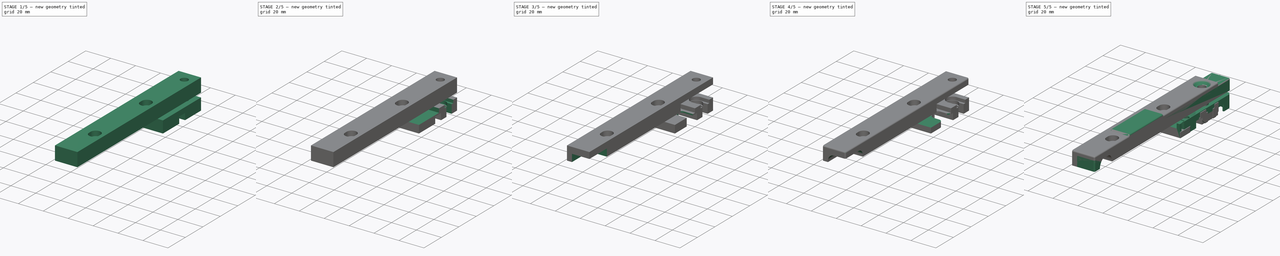
[diagram: build sequence overview — one tinted view per stage of 5, left to right]
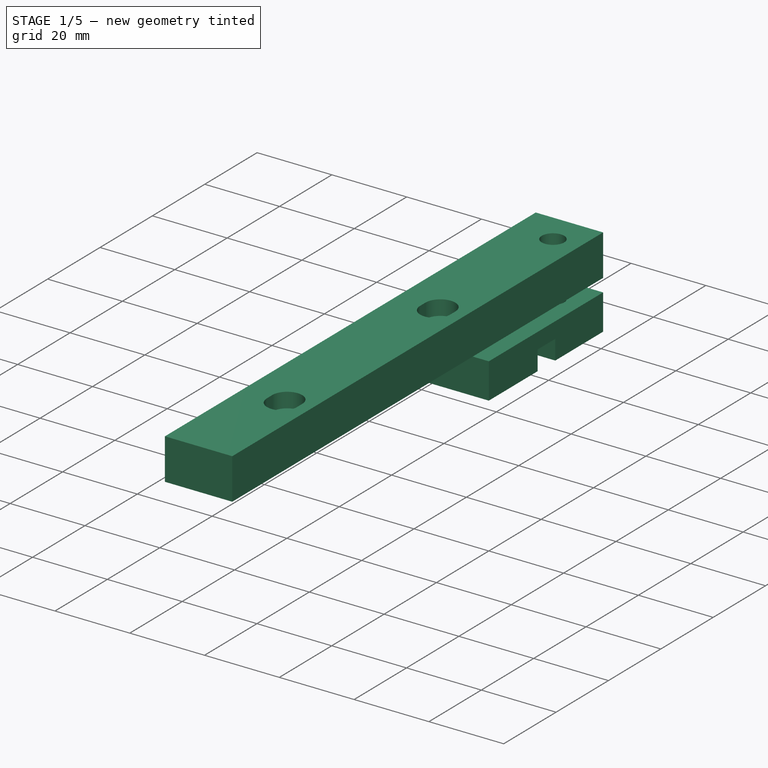
[diagram: stage 1 of 5 — iso view after this stage's code; geometry added in this stage tinted green]
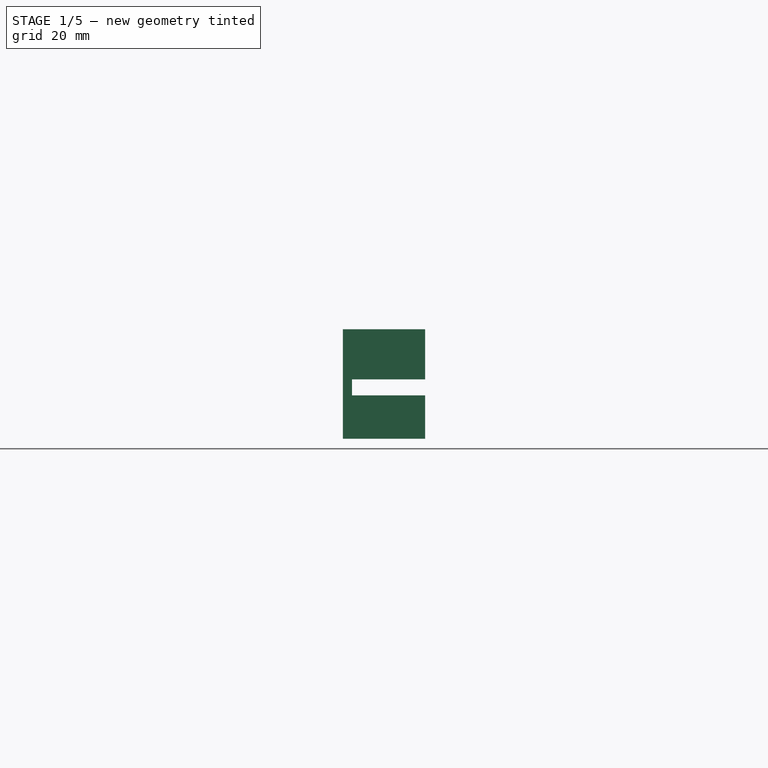
[diagram: stage 1 of 5 — front view after this stage's code; geometry added in this stage tinted green]
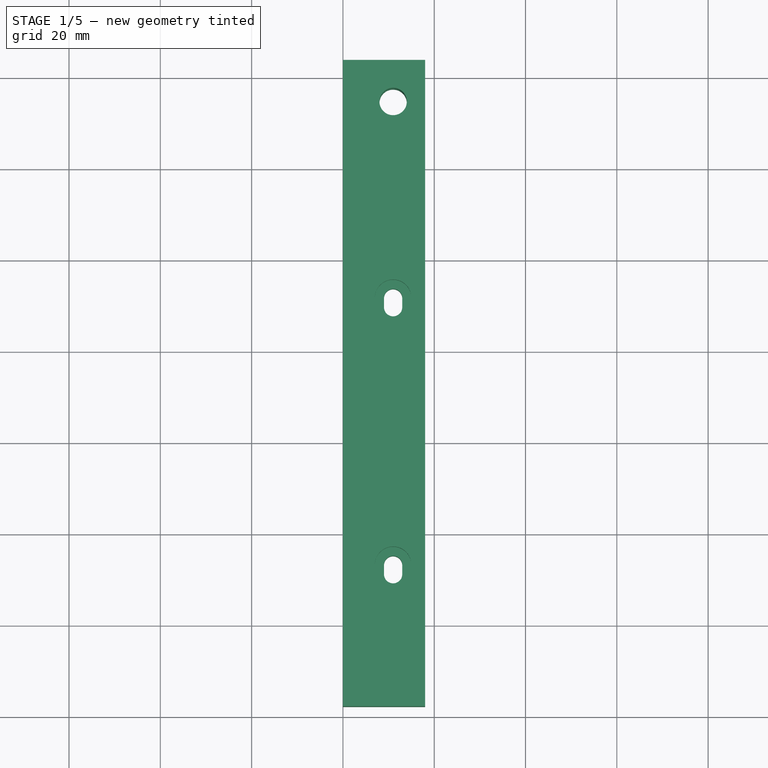
[diagram: stage 1 of 5 — top view after this stage's code; geometry added in this stage tinted green]
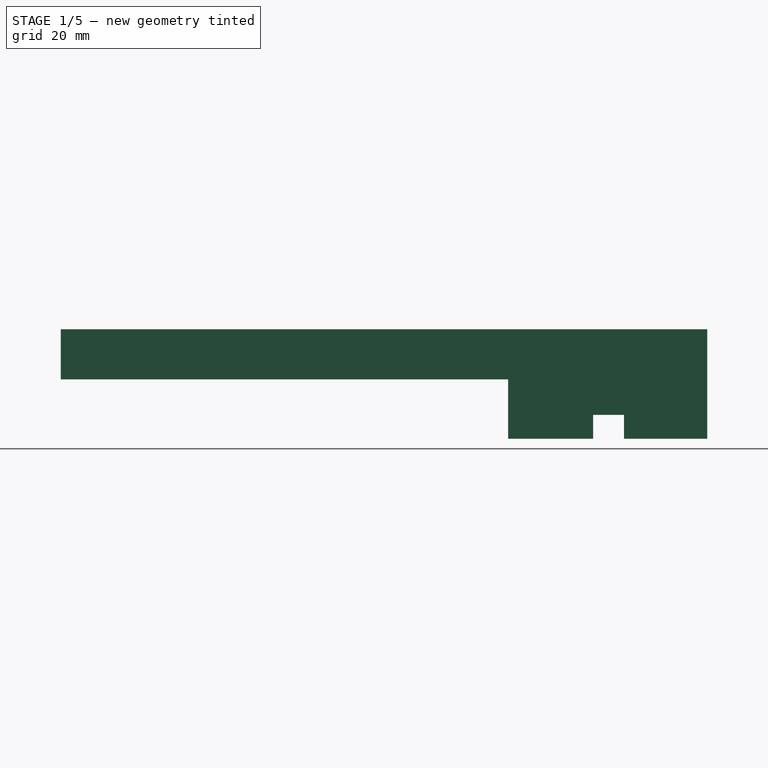
[diagram: stage 1 of 5 — right view after this stage's code; geometry added in this stage tinted green]
FCSTD DOCUMENT  (FreeCAD 0.18R4 (GitTag))
Label: y_cable_cover_v1.3
License: CreativeCommons Attribution-ShareAlike
LicenseURL: http://creativecommons.org/licenses/by-sa/4.0/
objects: Sketcher::SketchObject×13, PartDesign::Pocket×12, PartDesign::Fillet×3, Part::FeaturePython×2, App::FeaturePython×2, PartDesign::Chamfer×2, PartDesign::Pad×1, PartDesign::Body×1
note: 47 computed .brp shape members not serialized (recipe doc carries the construction recipe); baked Part::Feature solids carry a one-line shape summary decoded from their .brp

FEATURE [App::FeaturePython] circularEdgeConstraint01  label="circularEdgeConstraint01__Y_bed_chain_mounting_bracket_v1_01"  # a2plus constraint (typed FeaturePython)
  Object1 = y_cable_cover_01
  Object2 = Y_bed_chain_mounting_bracket_v1_01
  SubElement1 = Edge40
  SubElement2 = Edge15
  Type = circularEdge
  directionConstraint = 0
  lockRotation = false
  offset = 3
FEATURE [App::FeaturePython] circularEdgeConstraint01_mirror  label="circularEdgeConstraint01__y_cable_cover_01"  # a2plus constraint (typed FeaturePython)
  Object1 = y_cable_cover_01
  Object2 = Y_bed_chain_mounting_bracket_v1_01
  SubElement1 = Edge40
  SubElement2 = Edge15
  Type = circularEdge
  directionConstraint = 0
  lockRotation = false
  offset = 3
FEATURE [Sketcher::SketchObject] Sketch
  MapMode = 5
  Placement = pos=(0,0,0) rot=(0.57735,0.57735,0.57735;2.0944rad)
  Support = -> [YZ_Plane]
  sketch-geometry (10):
    g0: LineSegment StartX=-98 StartY=3 StartZ=0 EndX=-98 EndY=14 EndZ=0
    g1: LineSegment StartX=-98 StartY=14 StartZ=0 EndX=43.625 EndY=14 EndZ=0
    g2: LineSegment StartX=43.625 StartY=14 StartZ=0 EndX=43.625 EndY=-10 EndZ=0
    g3: LineSegment StartX=43.625 StartY=-10 StartZ=0 EndX=25.375 EndY=-10 EndZ=0
    g4: LineSegment StartX=25.375 StartY=-10 StartZ=0 EndX=25.375 EndY=-4.75 EndZ=0
    g5: LineSegment StartX=25.375 StartY=-4.75 StartZ=0 EndX=18.625 EndY=-4.75 EndZ=0
    g6: LineSegment StartX=18.625 StartY=-4.75 StartZ=0 EndX=18.625 EndY=-10 EndZ=0
    g7: LineSegment StartX=18.625 StartY=-10 StartZ=0 EndX=0 EndY=-10 EndZ=0
    g8: LineSegment StartX=0 StartY=-10 StartZ=0 EndX=0 EndY=3 EndZ=0
    g9: LineSegment StartX=0 StartY=3 StartZ=0 EndX=-98 EndY=3 EndZ=0
  constraints (30):
    c: Coincident(g2,g3)
    c: Coincident(g3,g4)
    c: Coincident(g4,g5)
    c: Coincident(g5,g6)
    c: Coincident(g6,g7)
    c: Coincident(g7,g8)
    c: Coincident(g8,g9)
    c: Coincident(g0,g9)
    c: Horizontal(g9)
    c: Horizontal(g1)
    c: Horizontal(g3)
    c: Horizontal(g7)
    c: Vertical(g8)
    c: Vertical(g0)
    c: Vertical(g2)
    c: Vertical(g6)
    c: Vertical(g4)
    c: Horizontal(g5)
    c: PointOnObject(g8,g-2)
    c: DistanceY(g8) = 3
    c: DistanceY(g8,g8) = 13
    c: DistanceX(g7,g7) = 18.625
    c: DistanceY(g6,g6) = 5.25
    c: Equal(g6,g4)
    c: DistanceX(g5,g5) = 6.75
    c: DistanceX(g3,g3) = 18.25
    c: DistanceX(g9,g9) = 98
    c: Coincident(g1,g2)
    c: DistanceY(g2,g2) = 24
    c: Coincident(g0,g1)
FEATURE [PartDesign::Pad] Pad
  Length = 18
  Length2 = 100
  Placement = pos=(0,0,0) rot=(0.57735,0.57735,0.57735;2.0944rad)
  Profile = -> Sketch
  Type = 0
FEATURE [Sketcher::SketchObject] Sketch001
  MapMode = 5
  Placement = pos=(-1.5807e-12,1.5792e-12,14) rot=(0,0,-1;1.5708rad)
  Support = -> [Pad]
  sketch-geometry (10):
    g0: Circle CenterX=-34.5 CenterY=11 CenterZ=0 NormalX=0 NormalY=0 NormalZ=1 AngleXU=0 Radius=3
    g1: ArcOfCircle CenterX=8.5 CenterY=11 CenterZ=0 NormalX=0 NormalY=0 NormalZ=1 AngleXU=0 Radius=2 StartAngle=1.5708 EndAngle=4.71239
    g2: ArcOfCircle CenterX=10.5 CenterY=11 CenterZ=0 NormalX=0 NormalY=0 NormalZ=1 AngleXU=0 Radius=2 StartAngle=4.71239 EndAngle=7.85398
    g3: LineSegment StartX=8.5 StartY=9 StartZ=0 EndX=10.5 EndY=9 EndZ=0
    g4: LineSegment StartX=8.5 StartY=13 StartZ=0 EndX=10.5 EndY=13 EndZ=0
    g5: ArcOfCircle CenterX=67 CenterY=11 CenterZ=0 NormalX=0 NormalY=0 NormalZ=1 AngleXU=0 Radius=2 StartAngle=1.5708 EndAngle=4.71239
    g6: ArcOfCircle CenterX=69 CenterY=11 CenterZ=0 NormalX=0 NormalY=0 NormalZ=1 AngleXU=0 Radius=2 StartAngle=4.71239 EndAngle=7.85398
    g7: LineSegment StartX=67 StartY=9 StartZ=0 EndX=69 EndY=9 EndZ=0
    g8: LineSegment StartX=67 StartY=13 StartZ=0 EndX=69 EndY=13 EndZ=0
    g9: LineSegment [constr] StartX=-34.5 StartY=11 StartZ=0 EndX=69 EndY=11 EndZ=0
  constraints (25):
    c: DistanceX(g0) = -34.5
    c: DistanceY(g0) = 11
    c: Radius(g0) = 3
    c: Tangent(g1,g4) = 1.5708
    c: Tangent(g1,g3) = -1.5708
    c: Tangent(g3,g2) = -1.5708
    c: Tangent(g4,g2) = 1.5708
    c: Horizontal(g3)
    c: Equal(g1,g2)
    c: Tangent(g5,g8) = 1.5708
    c: Tangent(g5,g7) = -1.5708
    c: Tangent(g7,g6) = -1.5708
    c: Tangent(g8,g6) = 1.5708
    c: Horizontal(g7)
    c: Equal(g5,g6)
    c: Coincident(g6,g9)
    c: Coincident(g0,g9)
    c: Horizontal(g9)
    c: PointOnObject(g1,g9)
    c: Radius(g6) = 2
    c: DistanceX(g6) = 69
    c: DistanceX(g5,g6) = 2
    c: DistanceX(g1,g2) = 2
    c: DistanceX(g2,g5) = 56.5
    c: Equal(g2,g5)
FEATURE [Sketcher::SketchObject] Sketch004
  MapMode = 5
  Placement = pos=(0,-2e-15,0) rot=(0.57735,0.57735,-0.57735;2.0944rad)
  sketch-geometry (4):
    g0: LineSegment StartX=0 StartY=2 StartZ=0 EndX=3.75 EndY=7 EndZ=0
    g1: LineSegment StartX=3.75 StartY=7 StartZ=0 EndX=3.75 EndY=18 EndZ=0
    g2: LineSegment StartX=3.75 StartY=18 StartZ=0 EndX=0 EndY=18 EndZ=0
    g3: LineSegment StartX=0 StartY=18 StartZ=0 EndX=0 EndY=2 EndZ=0
  constraints (12):
    c: Coincident(g0,g1)
    c: Coincident(g1,g2)
    c: Coincident(g2,g3)
    c: Coincident(g0,g3)
    c: Vertical(g3)
    c: Horizontal(g2)
    c: Vertical(g1)
    c: DistanceY(g3,g3) = 16
    c: DistanceX(g2,g2) = 3.75
    c: PointOnObject(g0,g-2)
    c: DistanceY(g0) = 2
    c: DistanceY(g1,g1) = 11
FEATURE [Sketcher::SketchObject] Sketch006
  MapMode = 5
  Placement = pos=(0,0,-2.9e-14) rot=(0,0,-1;1.5708rad)
  sketch-geometry (4):
    g0: ArcOfCircle CenterX=-34.5 CenterY=11 CenterZ=0 NormalX=0 NormalY=0 NormalZ=1 AngleXU=0 Radius=4.875 StartAngle=3.14159 EndAngle=6.28319
    g1: LineSegment StartX=-39.375 StartY=11 StartZ=0 EndX=-39.375 EndY=18 EndZ=0
    g2: LineSegment StartX=-39.375 StartY=18 StartZ=0 EndX=-29.625 EndY=18 EndZ=0
    g3: LineSegment StartX=-29.625 StartY=18 StartZ=0 EndX=-29.625 EndY=11 EndZ=0
  constraints (11):
    c: DistanceX(g0) = -34.5
    c: DistanceY(g0) = 11
    c: Coincident(g1,g2)
    c: Coincident(g2,g3)
    c: Tangent(g0,g1) = 1.5708
    c: Tangent(g0,g3) = 1.5708
    c: Horizontal(g2)
    c: Vertical(g3)
    c: Vertical(g1)
    c: Radius(g0) = 4.875
    c: DistanceY(g3,g3) = 7
FEATURE [Sketcher::SketchObject] Sketch007
  MapMode = 5
  Placement = pos=(3e-15,-3e-15,-3) rot=(0,0,-1;1.5708rad)
  sketch-geometry (5):
    g0: LineSegment StartX=-37.5 StartY=18 StartZ=0 EndX=-31.5 EndY=18 EndZ=0
    g1: LineSegment StartX=-31.5 StartY=18 StartZ=0 EndX=-31.5 EndY=11 EndZ=0
    g2: LineSegment [constr] StartX=-31.5 StartY=11 StartZ=0 EndX=-37.5 EndY=11 EndZ=0
    g3: LineSegment StartX=-37.5 StartY=11 StartZ=0 EndX=-37.5 EndY=18 EndZ=0
    g4: ArcOfCircle CenterX=-34.5 CenterY=11 CenterZ=0 NormalX=0 NormalY=0 NormalZ=1 AngleXU=0 Radius=3 StartAngle=3.14159 EndAngle=6.28319
  constraints (15):
    c: Coincident(g0,g1)
    c: Coincident(g1,g2)
    c: Coincident(g2,g3)
    c: Coincident(g3,g0)
    c: Horizontal(g0)
    c: Horizontal(g2)
    c: Vertical(g1)
    c: Vertical(g3)
    c: Coincident(g1,g4)
    c: Coincident(g2,g4)
    c: PointOnObject(g4,g2)
    c: DistanceX(g4) = -34.5
    c: DistanceY(g4) = 11
    c: Radius(g4) = 3
    c: DistanceY(g1,g1) = 7
FEATURE [Sketcher::SketchObject] Sketch008
  MapMode = 5
  Placement = pos=(4e-15,-5e-15,-3) rot=(0,0,-1;1.5708rad)
  sketch-geometry (1):
    g0: Circle CenterX=-34.5 CenterY=11 CenterZ=0 NormalX=0 NormalY=0 NormalZ=1 AngleXU=0 Radius=4.5
  constraints (3):
    c: DistanceX(g0) = -34.5
    c: DistanceY(g0) = 11
    c: Radius(g0) = 4.5
FEATURE [Sketcher::SketchObject] Sketch009
  MapMode = 5
  Placement = pos=(4e-15,-7e-15,-3.75) rot=(0,0,-1;1.5708rad)
  sketch-geometry (5):
    g0: ArcOfCircle CenterX=-17 CenterY=11 CenterZ=0 NormalX=0 NormalY=0 NormalZ=1 AngleXU=0 Radius=3.5 StartAngle=3.14159 EndAngle=6.28319
    g1: LineSegment StartX=-20.5 StartY=18 StartZ=0 EndX=-13.5 EndY=18 EndZ=0
    g2: LineSegment StartX=-13.5 StartY=18 StartZ=0 EndX=-13.5 EndY=11 EndZ=0
    g3: LineSegment [constr] StartX=-13.5 StartY=11 StartZ=0 EndX=-20.5 EndY=11 EndZ=0
    g4: LineSegment StartX=-20.5 StartY=11 StartZ=0 EndX=-20.5 EndY=18 EndZ=0
  constraints (18):
    c: DistanceX(g0) = -17
    c: DistanceY(g0) = 11
    c: Radius(g0) = 3.5
    c: Coincident(g1,g2)
    c: Coincident(g3,g4)
    c: Coincident(g4,g1)
    c: Horizontal(g1)
    c: Horizontal(g3)
    c: Vertical(g2)
    c: Vertical(g4)
    c: PointOnObject(g3,g0)
    c: PointOnObject(g0,g3)
    c: DistanceX(g1,g1) = 7
    c: PointOnObject(g0,g3)
    c: Coincident(g0,g3)
    c: Coincident(g0,g2)
    c: Coincident(g0,g3)
    c: DistanceY(g4,g4) = 7
FEATURE [Sketcher::SketchObject] Sketch010
  MapMode = 5
  Placement = pos=(-5e-15,5e-15,3) rot=(0.707107,0.707107,0;3.14159rad)
  sketch-geometry (4):
    g0: ArcOfCircle CenterX=53 CenterY=11 CenterZ=0 NormalX=0 NormalY=0 NormalZ=1 AngleXU=0 Radius=2 StartAngle=4.71239 EndAngle=7.85398
    g1: ArcOfCircle CenterX=8 CenterY=11 CenterZ=0 NormalX=0 NormalY=0 NormalZ=1 AngleXU=0 Radius=2 StartAngle=1.5708 EndAngle=4.71239
    g2: LineSegment StartX=53 StartY=13 StartZ=0 EndX=8 EndY=13 EndZ=0
    g3: LineSegment StartX=53 StartY=9 StartZ=0 EndX=8 EndY=9 EndZ=0
  constraints (10):
    c: Tangent(g0,g3) = 1.5708
    c: Tangent(g0,g2) = -1.5708
    c: Tangent(g2,g1) = -1.5708
    c: Tangent(g3,g1) = 1.5708
    c: Horizontal(g2)
    c: Equal(g0,g1)
    c: DistanceX(g2,g2) = 45
    c: Radius(g0) = 2
    c: DistanceX(g1) = 8
    c: DistanceY(g1) = 11
FEATURE [Sketcher::SketchObject] Sketch011
  MapMode = 5
  Placement = pos=(18,-4.4e-14,2.4e-14) rot=(0.57735,0.57735,0.57735;2.0944rad)
  sketch-geometry (4):
    g0: LineSegment StartX=-98 StartY=3 StartZ=0 EndX=-78 EndY=3 EndZ=0
    g1: LineSegment StartX=-78 StartY=3 StartZ=0 EndX=-78 EndY=9 EndZ=0
    g2: LineSegment StartX=-78 StartY=9 StartZ=0 EndX=-98 EndY=9 EndZ=0
    g3: LineSegment StartX=-98 StartY=9 StartZ=0 EndX=-98 EndY=3 EndZ=0
  constraints (12):
    c: Coincident(g0,g1)
    c: Coincident(g1,g2)
    c: Coincident(g2,g3)
    c: Coincident(g3,g0)
    c: Horizontal(g0)
    c: Horizontal(g2)
    c: Vertical(g1)
    c: Vertical(g3)
    c: DistanceX(g0) = -98
    c: DistanceY(g0) = 3
    c: DistanceX(g0,g0) = 20
    c: DistanceY(g1,g1) = 6
FEATURE [Sketcher::SketchObject] Sketch013
  MapMode = 5
  Placement = pos=(18,-4e-15,1.6e-14) rot=(0.57735,0.57735,0.57735;2.0944rad)
  sketch-geometry (4):
    g0: LineSegment StartX=6.5 StartY=9 StartZ=0 EndX=54.5 EndY=9 EndZ=0
    g1: LineSegment StartX=54.5 StartY=9 StartZ=0 EndX=54.5 EndY=3 EndZ=0
    g2: LineSegment StartX=54.5 StartY=3 StartZ=0 EndX=6.5 EndY=3 EndZ=0
    g3: LineSegment StartX=6.5 StartY=3 StartZ=0 EndX=6.5 EndY=9 EndZ=0
  constraints (12):
    c: Coincident(g0,g1)
    c: Coincident(g1,g2)
    c: Coincident(g2,g3)
    c: Coincident(g3,g0)
    c: Horizontal(g0)
    c: Horizontal(g2)
    c: Vertical(g1)
    c: Vertical(g3)
    c: DistanceX(g2) = 6.5
    c: DistanceY(g2) = 3
    c: DistanceX(g0,g0) = 48
    c: DistanceY(g1,g1) = 6
FEATURE [Sketcher::SketchObject] Sketch015
  MapMode = 5
  Placement = pos=(0,-5e-15,0) rot=(0.57735,0.57735,-0.57735;2.0944rad)
  sketch-geometry (5):
    g0: LineSegment StartX=0 StartY=2 StartZ=0 EndX=5.75 EndY=7 EndZ=0
    g1: LineSegment StartX=5.75 StartY=7 StartZ=0 EndX=5.75 EndY=18 EndZ=0
    g2: LineSegment StartX=5.75 StartY=18 StartZ=0 EndX=3.75 EndY=18 EndZ=0
    g3: LineSegment StartX=3.75 StartY=18 StartZ=0 EndX=3.75 EndY=7 EndZ=0
    g4: LineSegment StartX=3.75 StartY=7 StartZ=0 EndX=0 EndY=2 EndZ=0
  constraints (9):
    c: Coincident(g0,g1)
    c: Coincident(g1,g2)
    c: Coincident(g2,g3)
    c: Coincident(g3,g4)
    c: Coincident(g0,g4)
    c: Horizontal(g2)
    c: DistanceY(g0,g3) = 0
    c: Vertical(g1)
    c: DistanceX(g2,g2) = 2
FEATURE [PartDesign::Pocket] Pocket
  BaseFeature = -> Pad
  Length = 9
  Length2 = 100
  Placement = pos=(0,0,0) rot=(0.57735,0.57735,0.57735;2.0944rad)
  Profile = -> Sketch001
  Refine = true
  Type = 1
FEATURE [Sketcher::SketchObject] Sketch002
  MapMode = 5
  Placement = pos=(-1.5807e-12,1.5792e-12,14) rot=(0,0,-1;1.5708rad)
  Support = -> [Pocket]
  sketch-geometry (9):
    g0: ArcOfCircle CenterX=8.5 CenterY=11 CenterZ=0 NormalX=0 NormalY=0 NormalZ=1 AngleXU=0 Radius=4 StartAngle=1.5708 EndAngle=4.71239
    g1: ArcOfCircle CenterX=10.5 CenterY=11 CenterZ=0 NormalX=0 NormalY=0 NormalZ=1 AngleXU=0 Radius=4 StartAngle=4.71239 EndAngle=7.85398
    g2: LineSegment StartX=8.5 StartY=7 StartZ=0 EndX=10.5 EndY=7 EndZ=0
    g3: LineSegment StartX=8.5 StartY=15 StartZ=0 EndX=10.5 EndY=15 EndZ=0
    g4: ArcOfCircle CenterX=67 CenterY=11 CenterZ=0 NormalX=0 NormalY=0 NormalZ=1 AngleXU=0 Radius=4 StartAngle=1.5708 EndAngle=4.71239
    g5: ArcOfCircle CenterX=69 CenterY=11 CenterZ=0 NormalX=0 NormalY=0 NormalZ=1 AngleXU=0 Radius=4 StartAngle=4.71239 EndAngle=7.85398
    g6: LineSegment StartX=67 StartY=7 StartZ=0 EndX=69 EndY=7 EndZ=0
    g7: LineSegment StartX=67 StartY=15 StartZ=0 EndX=69 EndY=15 EndZ=0
    g8: LineSegment [constr] StartX=8.5 StartY=11 StartZ=0 EndX=69 EndY=11 EndZ=0
  constraints (22):
    c: Tangent(g0,g3) = 1.5708
    c: Tangent(g0,g2) = -1.5708
    c: Tangent(g2,g1) = -1.5708
    c: Tangent(g3,g1) = 1.5708
    c: Horizontal(g2)
    c: Equal(g0,g1)
    c: Tangent(g4,g7) = 1.5708
    c: Tangent(g4,g6) = -1.5708
    c: Tangent(g6,g5) = -1.5708
    c: Tangent(g7,g5) = 1.5708
    c: Horizontal(g6)
    c: Equal(g4,g5)
    c: Coincident(g5,g8)
    c: Coincident(g0,g8)
    c: Horizontal(g8)
    c: DistanceX(g0) = 8.5
    c: DistanceY(g0) = 11
    c: Radius(g0) = 4
    c: Equal(g3,g7)
    c: DistanceX(g7,g7) = 2
    c: DistanceX(g8,g8) = 60.5
    c: Equal(g1,g4)
FEATURE [PartDesign::Pocket] Pocket001
  BaseFeature = -> Pocket
  Length = 4
  Length2 = 100
  Placement = pos=(0,0,0) rot=(0.57735,0.57735,0.57735;2.0944rad)
  Profile = -> Sketch002
  Refine = true
  Type = 0
FEATURE [Sketcher::SketchObject] Sketch003
  MapMode = 5
  Placement = pos=(4.916e-12,43.625,-4.9257e-12) rot=(0.57735,0.57735,0.57735;4.18879rad)
  Support = -> [Pocket001]
  sketch-geometry (4):
    g0: LineSegment StartX=-0.5 StartY=18 StartZ=0 EndX=3 EndY=18 EndZ=0
    g1: LineSegment StartX=3 StartY=18 StartZ=0 EndX=3 EndY=2 EndZ=0
    g2: LineSegment StartX=3 StartY=2 StartZ=0 EndX=-0.5 EndY=2 EndZ=0
    g3: LineSegment StartX=-0.5 StartY=2 StartZ=0 EndX=-0.5 EndY=18 EndZ=0
  constraints (12):
    c: Coincident(g0,g1)
    c: Coincident(g1,g2)
    c: Coincident(g2,g3)
    c: Coincident(g3,g0)
    c: Horizontal(g0)
    c: Horizontal(g2)
    c: Vertical(g1)
    c: Vertical(g3)
    c: DistanceY(g0) = 18
    c: DistanceY(g3,g3) = 16
    c: DistanceX(g2,g2) = 3.5
    c: DistanceX(g1) = 3
FEATURE [PartDesign::Pocket] Pocket002
  BaseFeature = -> Pocket001
  Length = 8
  Length2 = 100
  Placement = pos=(0,0,0) rot=(0.57735,0.57735,0.57735;2.0944rad)
  Profile = -> Sketch003
  Refine = true
  Type = 1
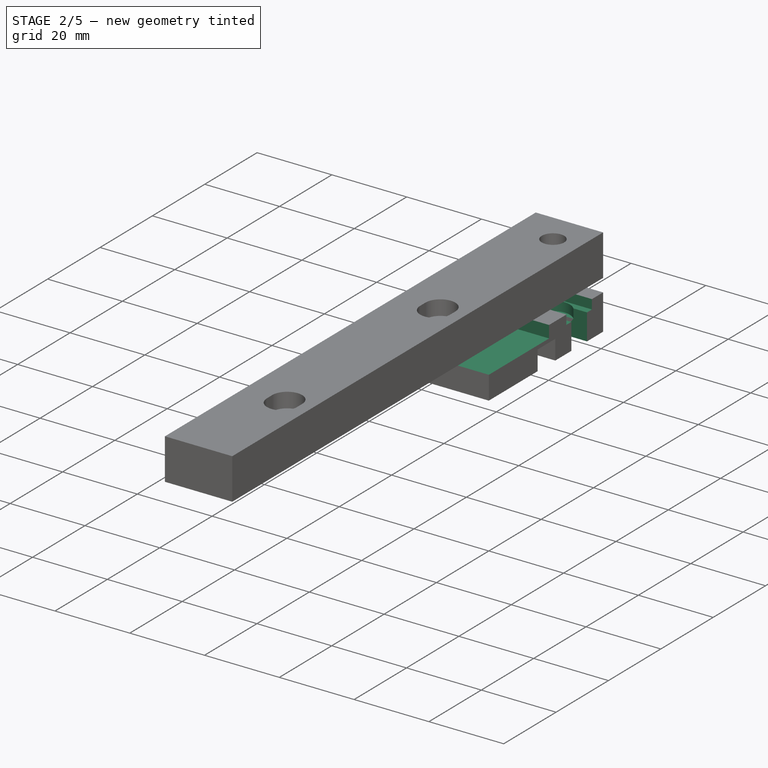
[diagram: stage 2 of 5 — iso view after this stage's code; geometry added in this stage tinted green]
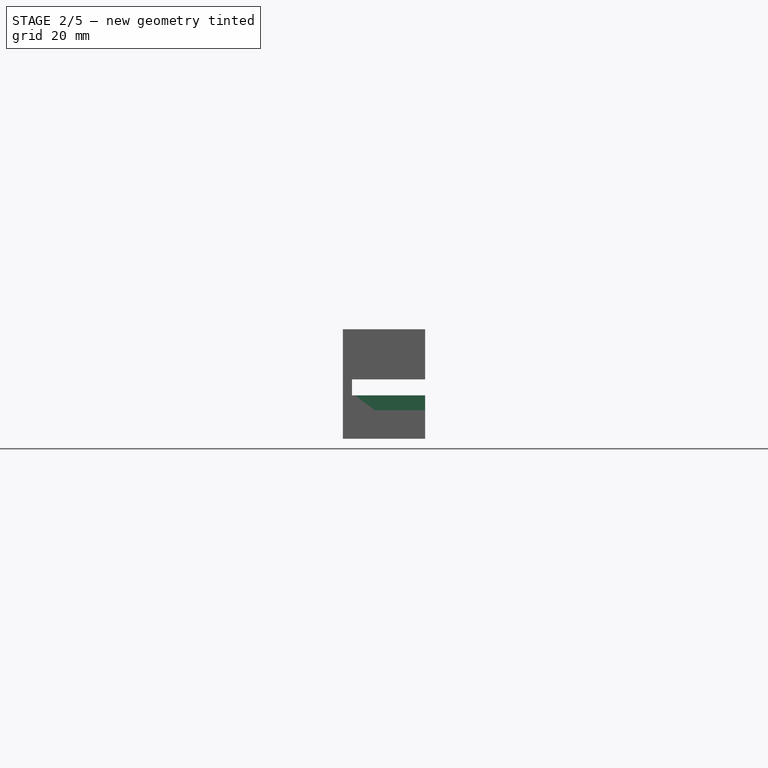
[diagram: stage 2 of 5 — front view after this stage's code; geometry added in this stage tinted green]
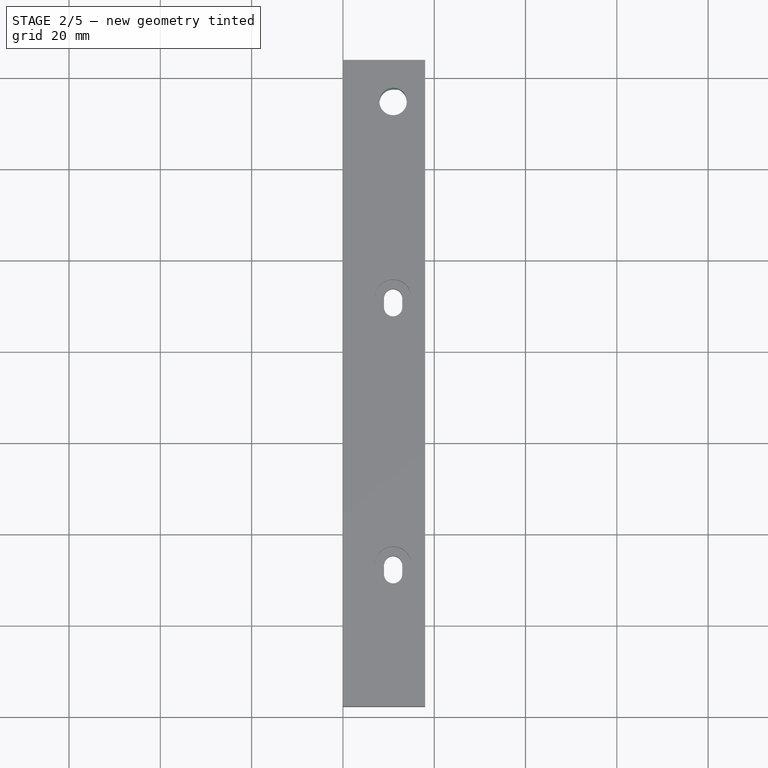
[diagram: stage 2 of 5 — top view after this stage's code; geometry added in this stage tinted green]
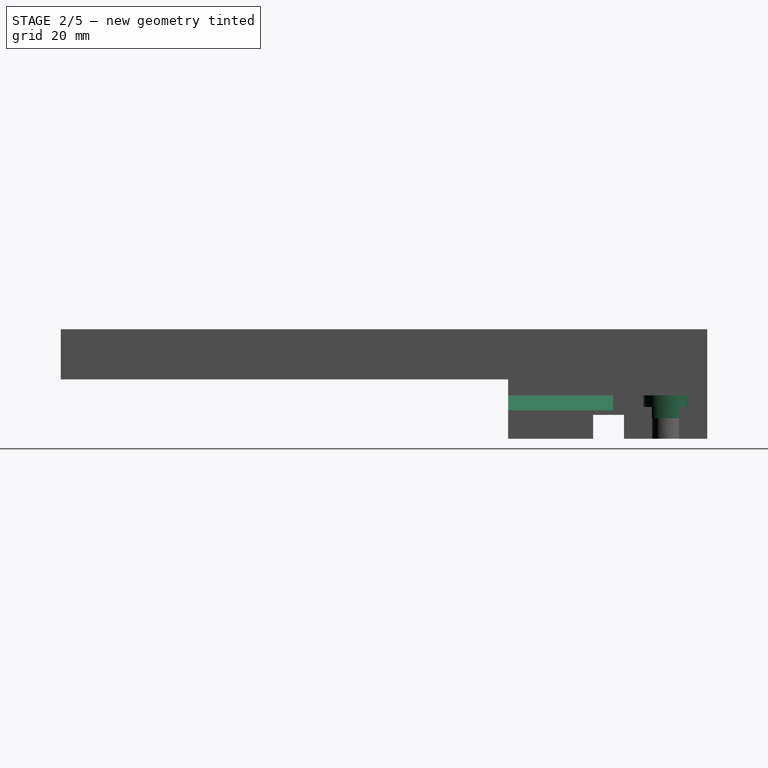
[diagram: stage 2 of 5 — right view after this stage's code; geometry added in this stage tinted green]
FEATURE [PartDesign::Pocket] Pocket003
  BaseFeature = -> Pocket002
  Length = 23
  Length2 = 100
  Placement = pos=(0,0,0) rot=(0.57735,0.57735,0.57735;2.0944rad)
  Profile = -> Sketch004
  Refine = true
  Type = 0
FEATURE [PartDesign::Pocket] Pocket004
  BaseFeature = -> Pocket003
  Length = 3
  Length2 = 100
  Placement = pos=(0,0,0) rot=(0.57735,0.57735,0.57735;2.0944rad)
  Profile = -> Sketch006
  Refine = true
  Type = 0
FEATURE [PartDesign::Pocket] Pocket005
  BaseFeature = -> Pocket004
  Length = 10
  Length2 = 100
  Placement = pos=(0,0,0) rot=(0.57735,0.57735,0.57735;2.0944rad)
  Profile = -> Sketch007
  Refine = true
  Type = 0
FEATURE [PartDesign::Pocket] Pocket006
  BaseFeature = -> Pocket005
  Length = 2.5
  Length2 = 100
  Placement = pos=(0,0,0) rot=(0.57735,0.57735,0.57735;2.0944rad)
  Profile = -> Sketch008
  Refine = true
  Type = 0
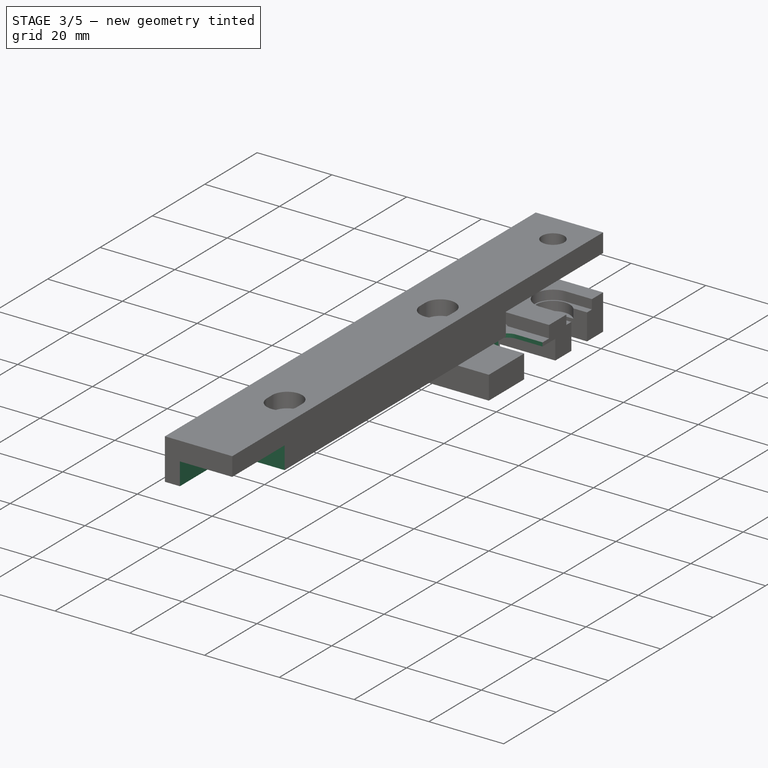
[diagram: stage 3 of 5 — iso view after this stage's code; geometry added in this stage tinted green]
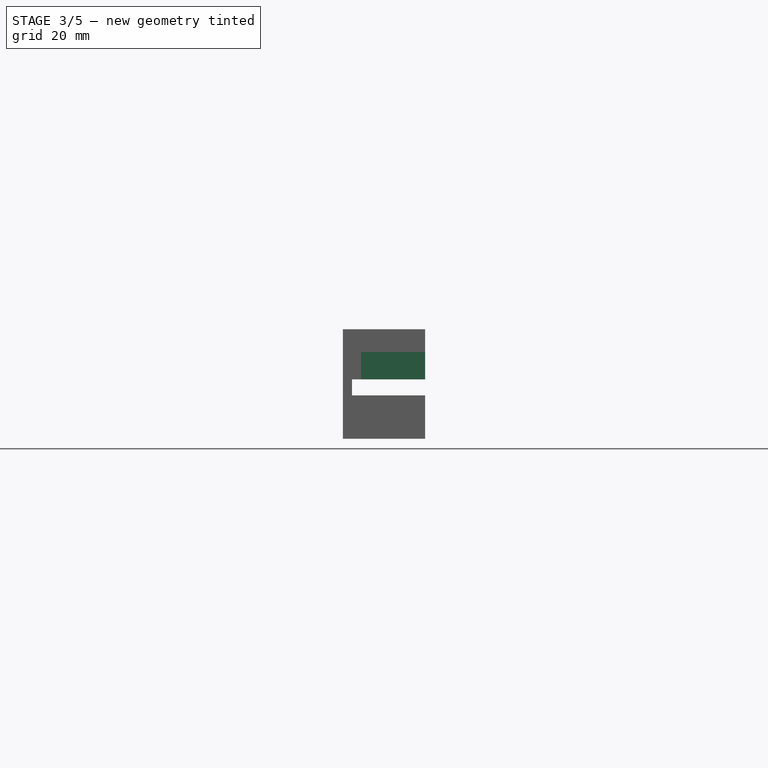
[diagram: stage 3 of 5 — front view after this stage's code; geometry added in this stage tinted green]
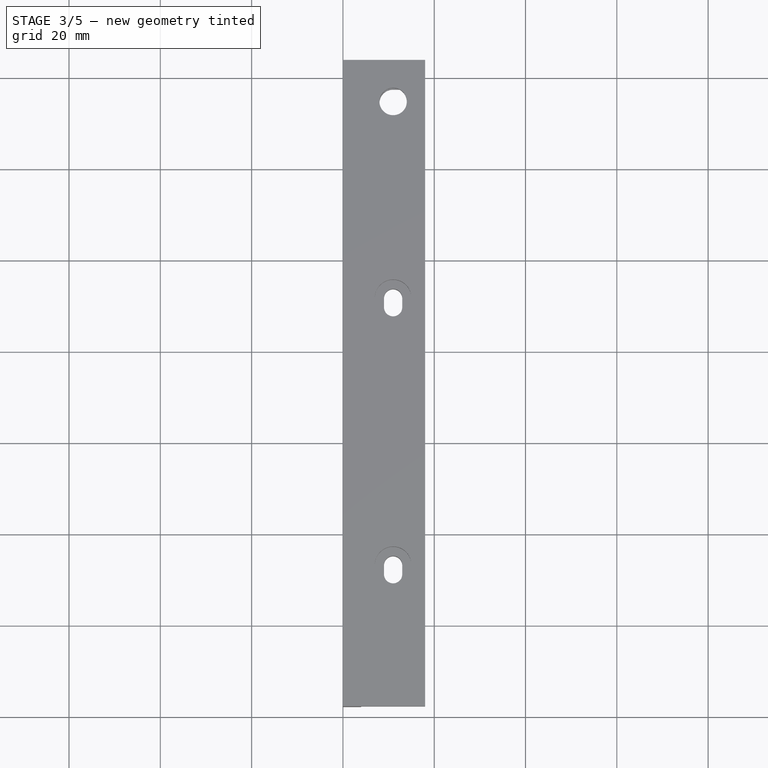
[diagram: stage 3 of 5 — top view after this stage's code; geometry added in this stage tinted green]
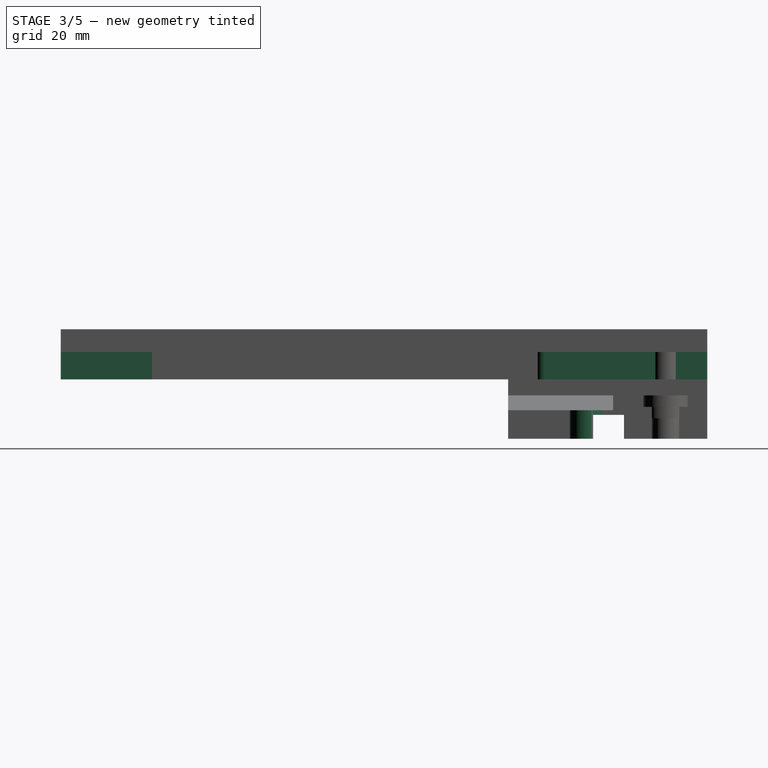
[diagram: stage 3 of 5 — right view after this stage's code; geometry added in this stage tinted green]
FEATURE [PartDesign::Pocket] Pocket007
  BaseFeature = -> Pocket006
  Length = 8
  Length2 = 100
  Placement = pos=(0,0,0) rot=(0.57735,0.57735,0.57735;2.0944rad)
  Profile = -> Sketch009
  Refine = true
  Type = 0
FEATURE [PartDesign::Pocket] Pocket008
  BaseFeature = -> Pocket007
  Length = 6
  Length2 = 100
  Placement = pos=(0,0,0) rot=(0.57735,0.57735,0.57735;2.0944rad)
  Profile = -> Sketch010
  Refine = true
  Type = 0
FEATURE [PartDesign::Pocket] Pocket009
  BaseFeature = -> Pocket008
  Length = 14
  Length2 = 100
  Placement = pos=(0,0,0) rot=(0.57735,0.57735,0.57735;2.0944rad)
  Profile = -> Sketch011
  Refine = true
  Type = 0
FEATURE [PartDesign::Pocket] Pocket010
  BaseFeature = -> Pocket009
  Length = 7
  Length2 = 100
  Placement = pos=(0,0,0) rot=(0.57735,0.57735,0.57735;2.0944rad)
  Profile = -> Sketch013
  Refine = true
  Type = 0
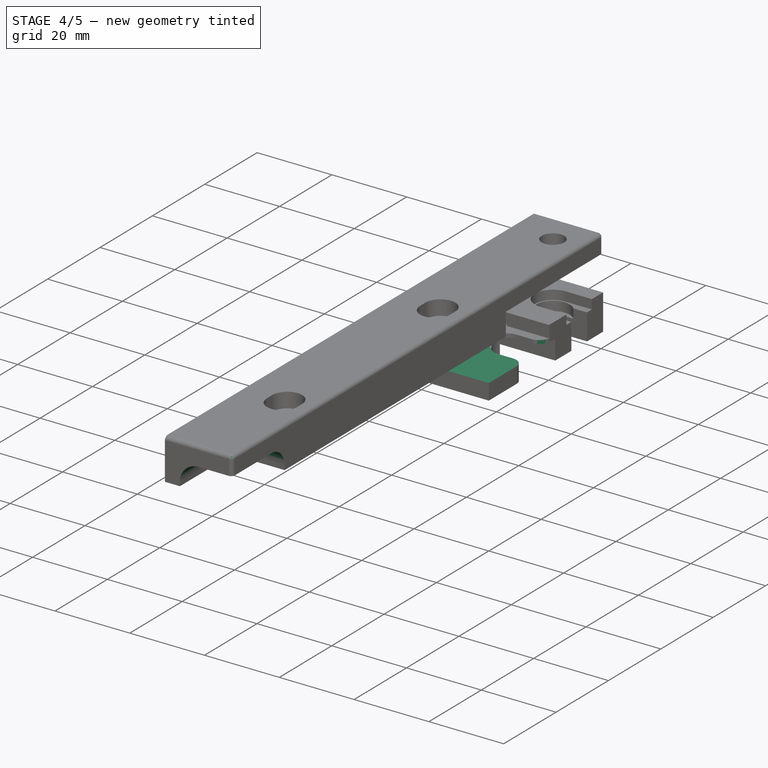
[diagram: stage 4 of 5 — iso view after this stage's code; geometry added in this stage tinted green]
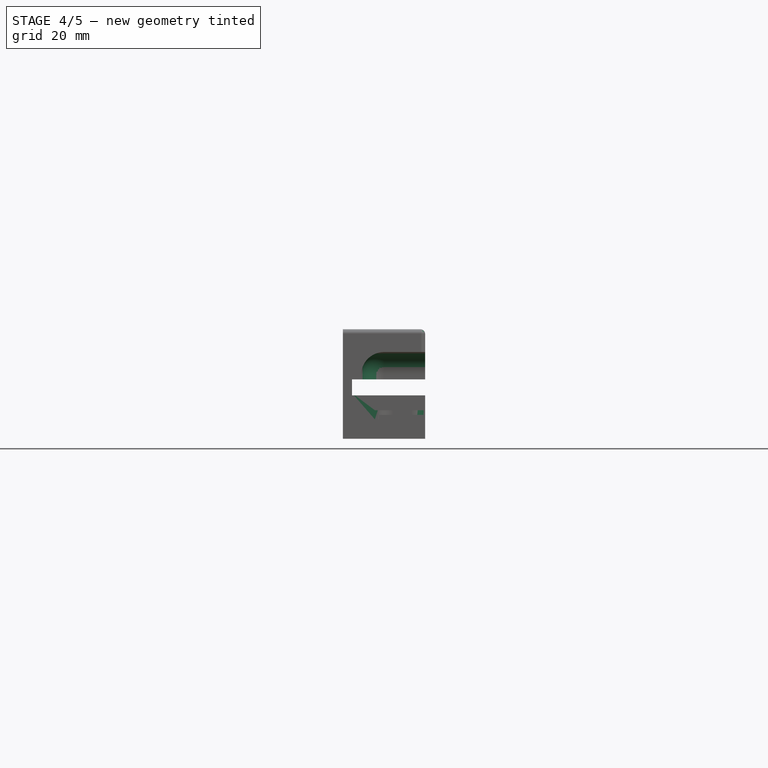
[diagram: stage 4 of 5 — front view after this stage's code; geometry added in this stage tinted green]
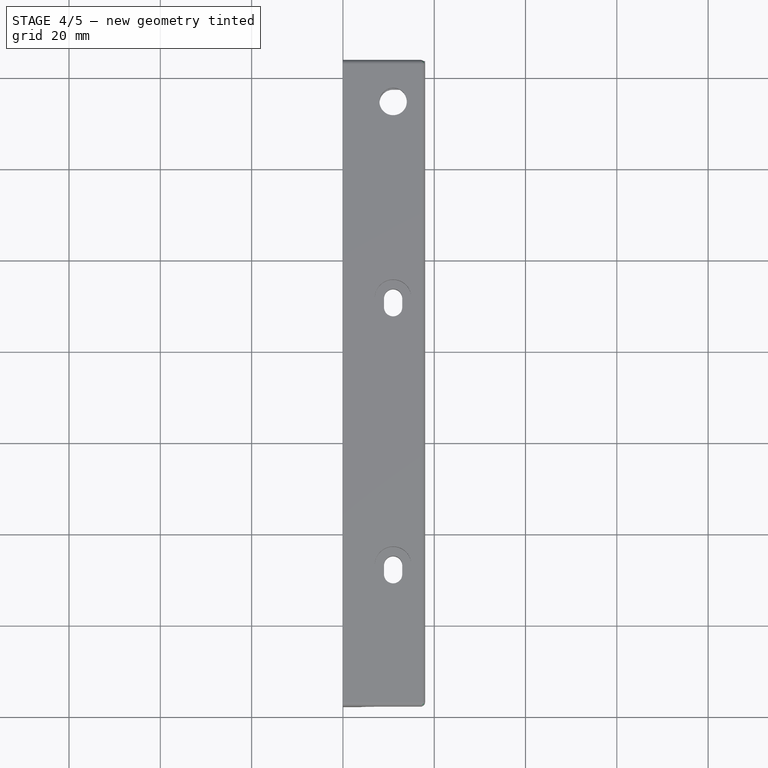
[diagram: stage 4 of 5 — top view after this stage's code; geometry added in this stage tinted green]
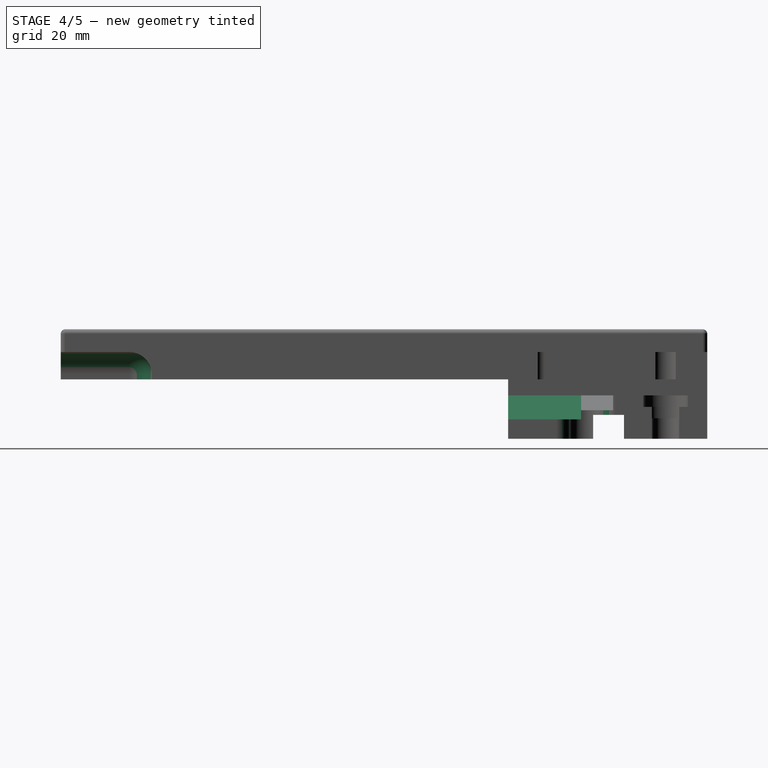
[diagram: stage 4 of 5 — right view after this stage's code; geometry added in this stage tinted green]
FEATURE [PartDesign::Pocket] Pocket011
  BaseFeature = -> Pocket010
  Length = 16
  Length2 = 100
  Placement = pos=(0,0,0) rot=(0.57735,0.57735,0.57735;2.0944rad)
  Profile = -> Sketch015
  Refine = true
  Type = 0
FEATURE [PartDesign::Fillet] Fillet
  Base = -> Pocket011 [Edge33,Edge34,Edge36]
  BaseFeature = -> Pocket011
  Placement = pos=(0,0,0) rot=(0.57735,0.57735,0.57735;2.0944rad)
  Radius = 5
FEATURE [PartDesign::Fillet] Fillet001
  Base = -> Fillet [Edge5,Edge3,Edge15,Edge17,Edge23]
  BaseFeature = -> Fillet
  Placement = pos=(0,0,0) rot=(0.57735,0.57735,0.57735;2.0944rad)
  Radius = 1
FEATURE [PartDesign::Fillet] Fillet002
  Base = -> Fillet001 [Edge188,Edge174]
  BaseFeature = -> Fillet001
  Placement = pos=(0,0,0) rot=(0.57735,0.57735,0.57735;2.0944rad)
  Radius = 3
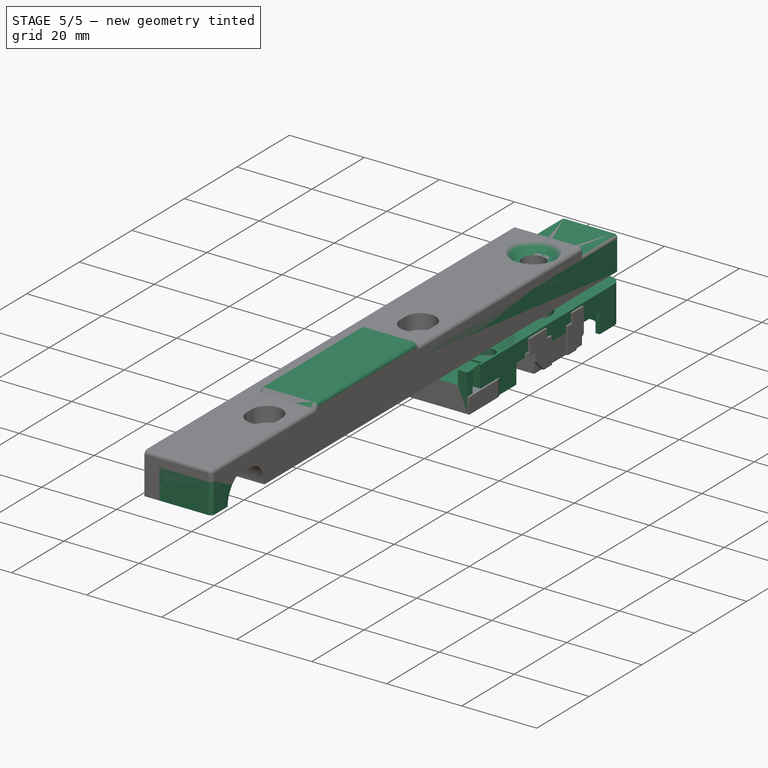
[diagram: stage 5 of 5 — iso view after this stage's code; geometry added in this stage tinted green]
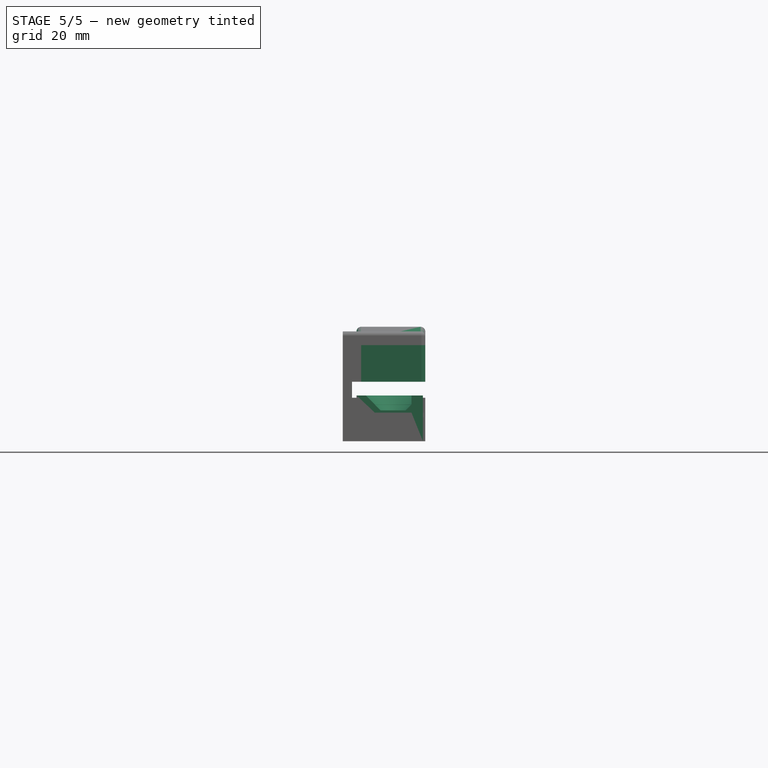
[diagram: stage 5 of 5 — front view after this stage's code; geometry added in this stage tinted green]
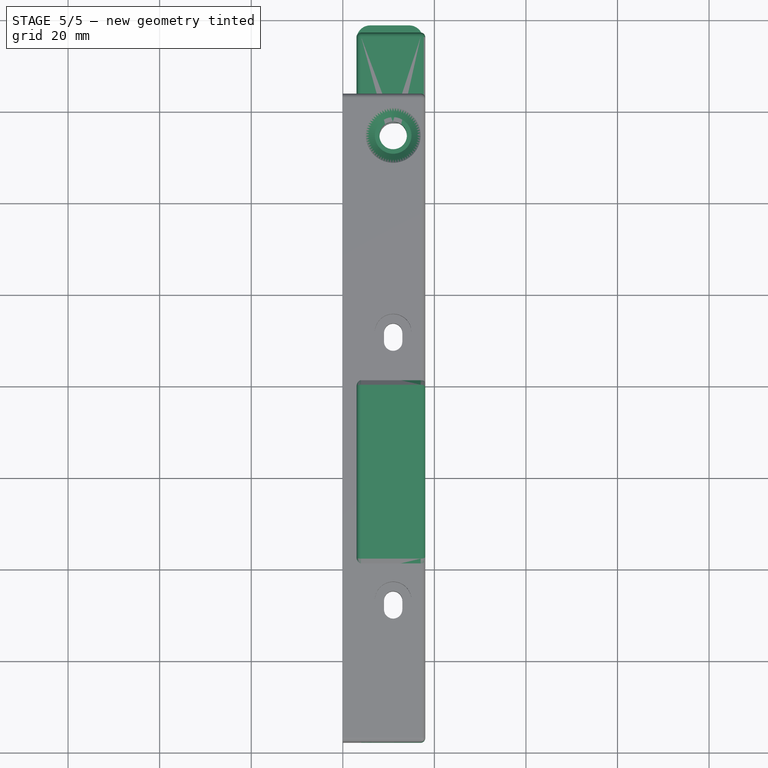
[diagram: stage 5 of 5 — top view after this stage's code; geometry added in this stage tinted green]
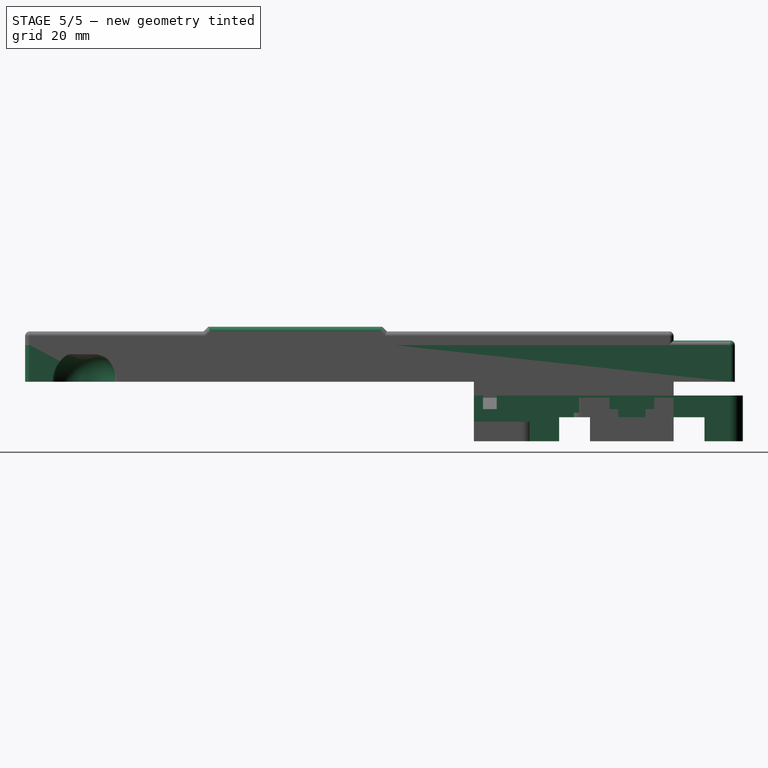
[diagram: stage 5 of 5 — right view after this stage's code; geometry added in this stage tinted green]
FEATURE [Part::FeaturePython] Y_bed_chain_mounting_bracket_v1_01  # a2plus imported part (geometry in sourceFile) (typed FeaturePython)
  Placement = pos=(3,0,0) rot=(0,0,1;0rad)
  fixedPosition = true
  sourceFile = <userpath>/Projects/taz-quiver/production_parts/printed_parts/y_bed_chain_mounting_bracket/Y_bed_chain_mounting_bracket_v1.fcstd
  timeLastImport = 1.54811e+09
  updateColors = true
FEATURE [Part::FeaturePython] y_cable_cover_01  # a2plus imported part (geometry in sourceFile) (typed FeaturePython)
  Placement = pos=(3,-78,3) rot=(0,0,1;0rad)
  fixedPosition = false
  sourceFile = <userpath>/Projects/taz-quiver/production_parts/printed_parts/y_cable_cover/y_cable_cover.fcstd
  timeLastImport = 1.54766e+09
  updateColors = true
FEATURE [PartDesign::Chamfer] Chamfer
  Base = -> Fillet002 [Edge94]
  BaseFeature = -> Fillet002
  Placement = pos=(0,0,0) rot=(0.57735,0.57735,0.57735;2.0944rad)
  Size = 3
FEATURE [PartDesign::Chamfer] Chamfer001
  Base = -> Chamfer [Edge103,Edge106]
  BaseFeature = -> Chamfer
  Placement = pos=(0,0,0) rot=(0.57735,0.57735,0.57735;2.0944rad)
  Size = 3
FEATURE [PartDesign::Body] Body
  Group = -> [Sketch,Pad,Sketch001,Sketch002,Sketch003,Sketch004,Sketch006,Sketch007,Sketch008,Sketch009,Sketch010,Sketch011,Sketch013,Sketch015,Pocket,Pocket001,Pocket002,Pocket003,Pocket004,Pocket005,Pocket006,Pocket007,Pocket008,Pocket009,Pocket010,Pocket011,Fillet,Fillet001,Fillet002,Chamfer,Chamfer001]
  Origin = -> Origin
  Tip = -> Chamfer001
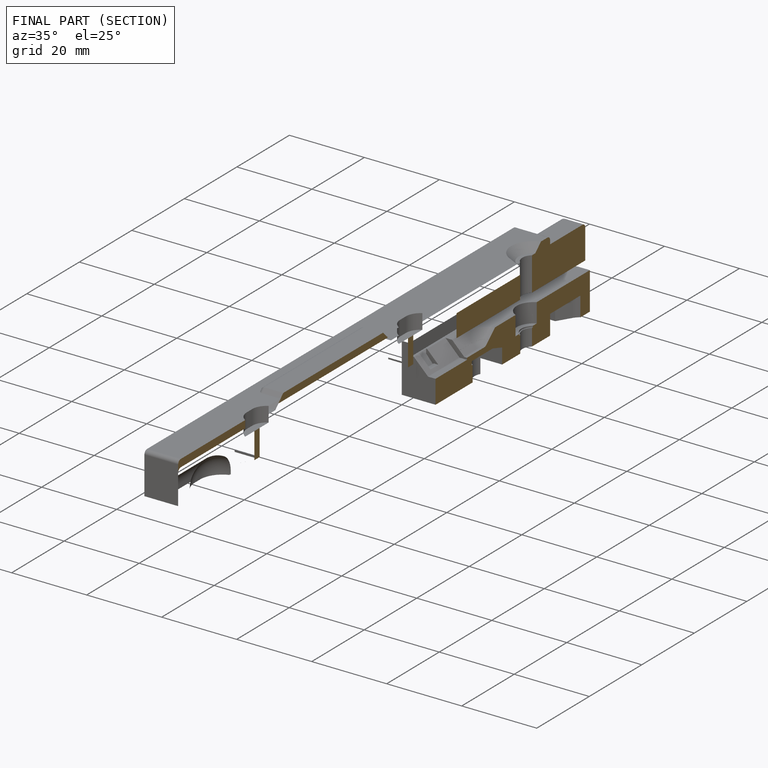
[diagram: finished part — half-section view (interior)]
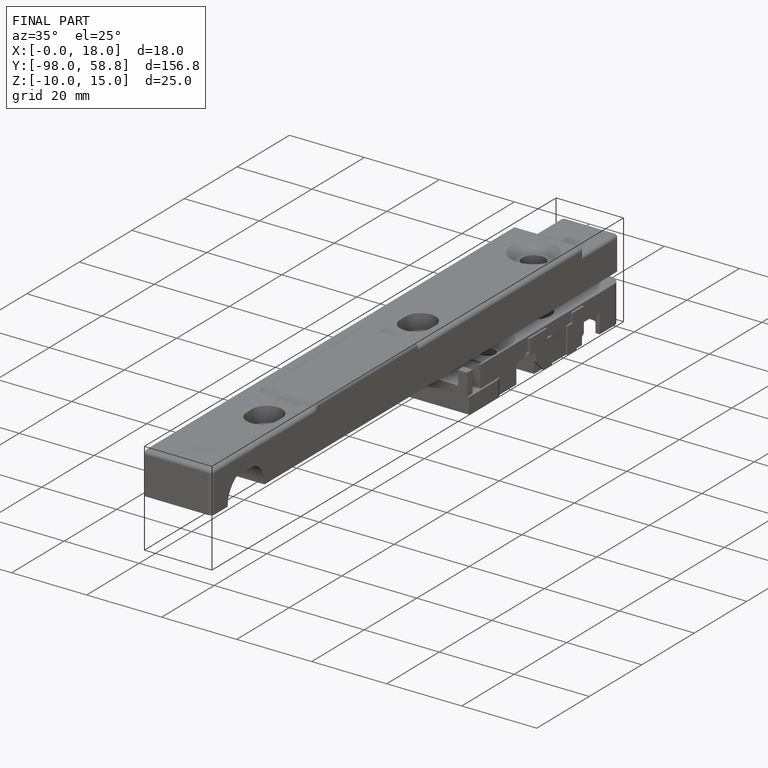
[diagram: finished part — iso view with bounding-box wireframe]
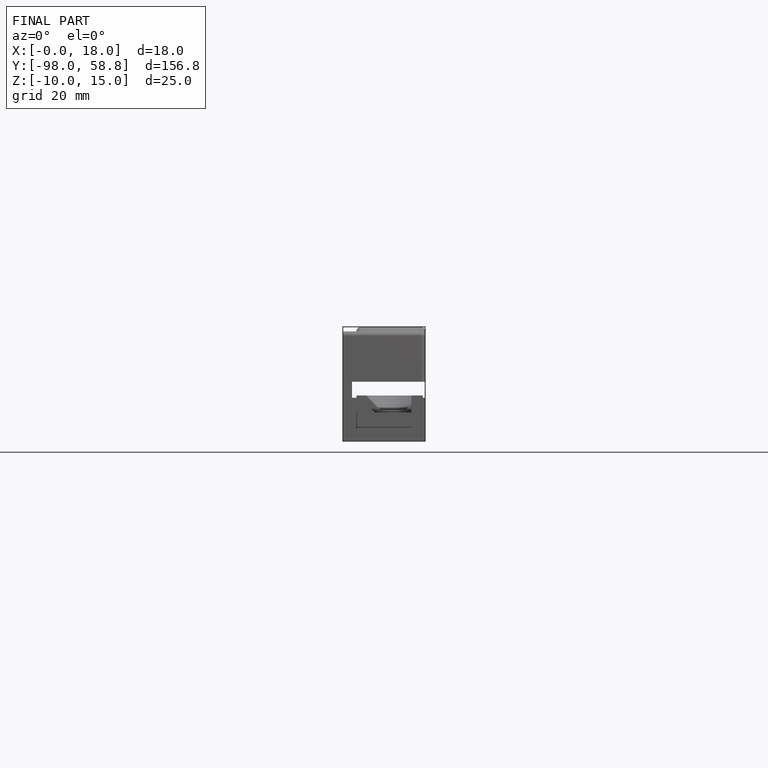
[diagram: finished part — front view with bounding-box wireframe]
